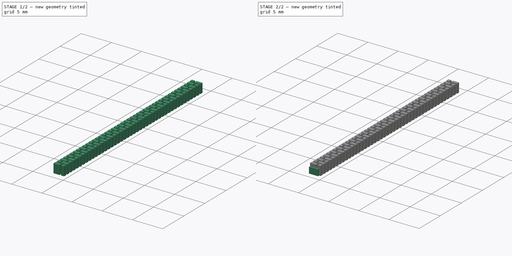
[diagram: build sequence overview — one tinted view per stage of 2, left to right]
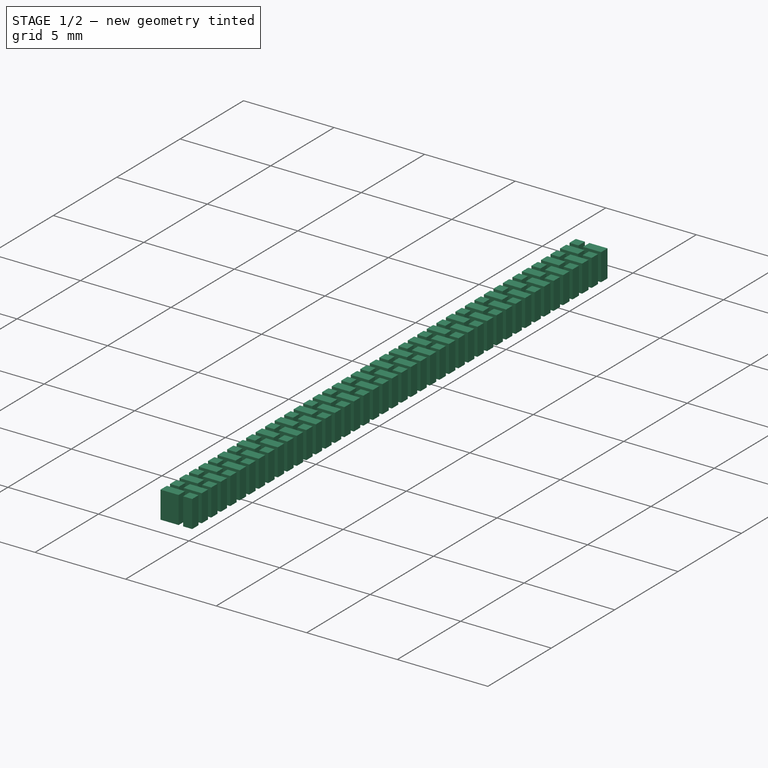
[diagram: stage 1 of 2 — iso view after this stage's code; geometry added in this stage tinted green]
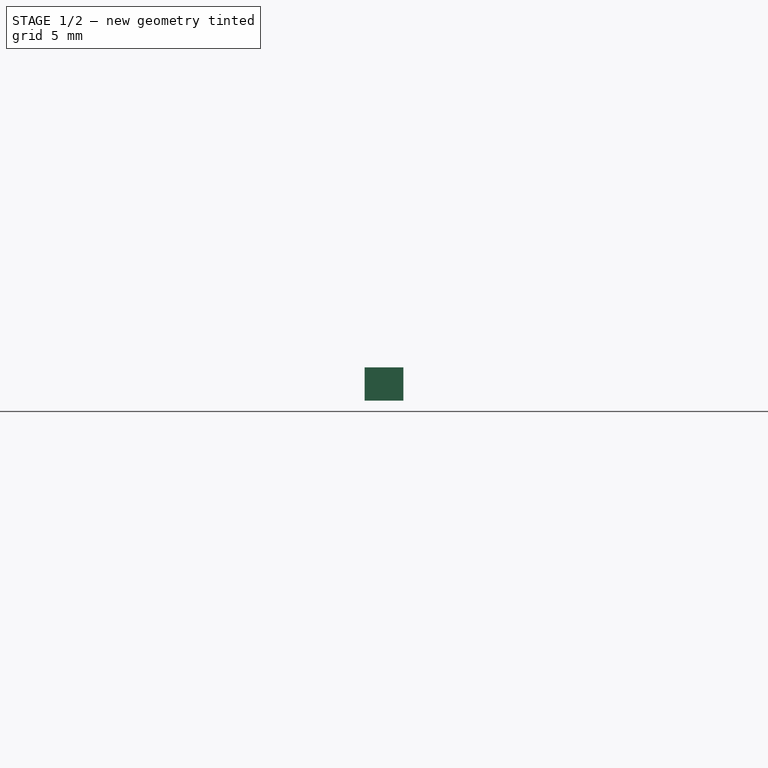
[diagram: stage 1 of 2 — front view after this stage's code; geometry added in this stage tinted green]
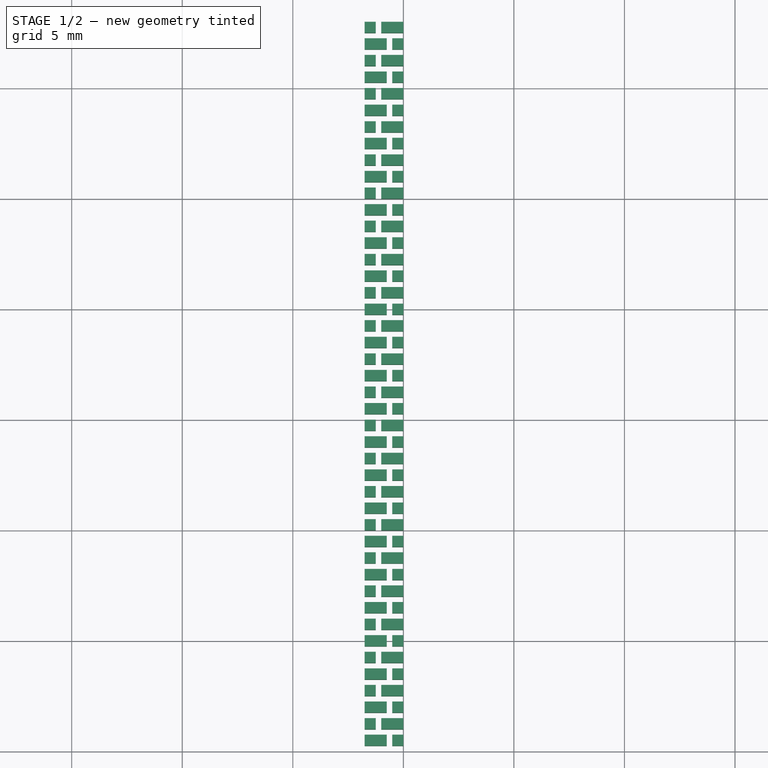
[diagram: stage 1 of 2 — top view after this stage's code; geometry added in this stage tinted green]
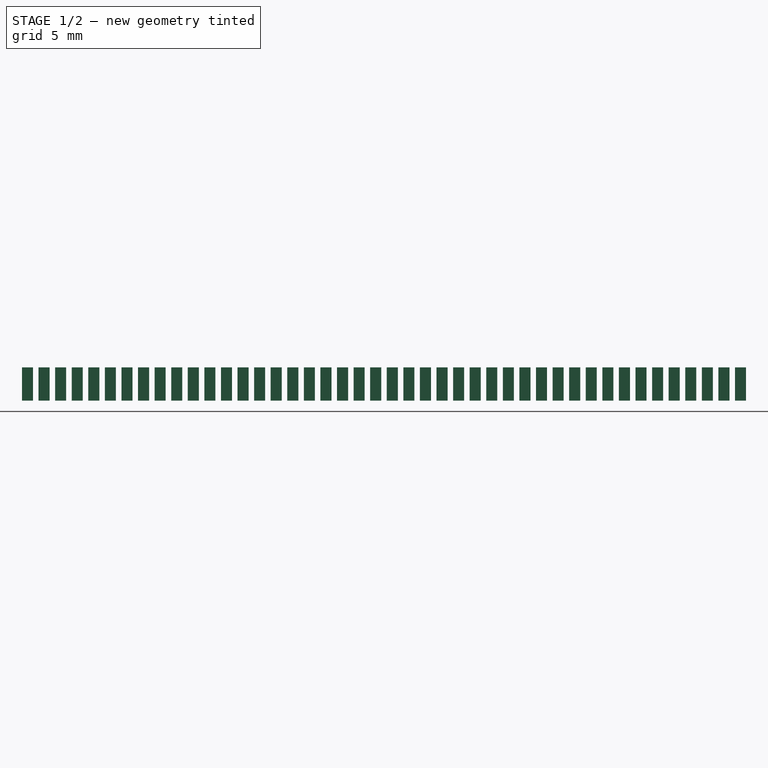
[diagram: stage 1 of 2 — right view after this stage's code; geometry added in this stage tinted green]
FCSTD DOCUMENT  (FreeCAD 0.16R6015 (Git))
Label: parement-brique-coin
License: All rights reserved
LicenseURL: http://fr.wikipedia.org/wiki/<copyright redacted>
objects: Sketcher::SketchObject×2, PartDesign::Pad×2, Part::FeaturePython×1
note: 7 computed .brp shape members not serialized (recipe doc carries the construction recipe); baked Part::Feature solids carry a one-line shape summary decoded from their .brp

FEATURE [Sketcher::SketchObject] Sketch001
  Placement = pos=(0,0,1) rot=(0,0,1;0rad)
  sketch-geometry (16):
    g0: LineSegment StartX=-0.5 StartY=0.75 StartZ=0 EndX=0 EndY=0.75 EndZ=0
    g1: LineSegment StartX=0 StartY=0.75 StartZ=0 EndX=0 EndY=0.25 EndZ=0
    g2: LineSegment StartX=0 StartY=0.25 StartZ=0 EndX=-0.5 EndY=0.25 EndZ=0
    g3: LineSegment StartX=-0.5 StartY=0.25 StartZ=0 EndX=-0.5 EndY=0.75 EndZ=0
    g4: LineSegment StartX=-1.75 StartY=0.75 StartZ=0 EndX=-0.75 EndY=0.75 EndZ=0
    g5: LineSegment StartX=-0.75 StartY=0.75 StartZ=0 EndX=-0.75 EndY=0.25 EndZ=0
    g6: LineSegment StartX=-0.75 StartY=0.25 StartZ=0 EndX=-1.75 EndY=0.25 EndZ=0
    g7: LineSegment StartX=-1.75 StartY=0.25 StartZ=0 EndX=-1.75 EndY=0.75 EndZ=0
    g8: LineSegment StartX=-1 StartY=1.5 StartZ=0 EndX=0 EndY=1.5 EndZ=0
    g9: LineSegment StartX=0 StartY=1.5 StartZ=0 EndX=0 EndY=1 EndZ=0
    g10: LineSegment StartX=0 StartY=1 StartZ=0 EndX=-1 EndY=1 EndZ=0
    g11: LineSegment StartX=-1 StartY=1 StartZ=0 EndX=-1 EndY=1.5 EndZ=0
    g12: LineSegment StartX=-1.75 StartY=1.5 StartZ=0 EndX=-1.25 EndY=1.5 EndZ=0
    g13: LineSegment StartX=-1.25 StartY=1.5 StartZ=0 EndX=-1.25 EndY=1 EndZ=0
    g14: LineSegment StartX=-1.25 StartY=1 StartZ=0 EndX=-1.75 EndY=1 EndZ=0
    g15: LineSegment StartX=-1.75 StartY=1 StartZ=0 EndX=-1.75 EndY=1.5 EndZ=0
  constraints (48):
    c: Coincident(g0,g1)
    c: Coincident(g1,g2)
    c: Coincident(g2,g3)
    c: Coincident(g3,g0)
    c: Horizontal(g0)
    c: Horizontal(g2)
    c: Vertical(g1)
    c: Vertical(g3)
    c: Coincident(g4,g5)
    c: Coincident(g5,g6)
    c: Coincident(g6,g7)
    c: Coincident(g7,g4)
    c: Horizontal(g4)
    c: Horizontal(g6)
    c: Vertical(g5)
    c: Vertical(g7)
    c: Coincident(g8,g9)
    c: Coincident(g9,g10)
    c: Coincident(g10,g11)
    c: Coincident(g11,g8)
    c: Horizontal(g8)
    c: Horizontal(g10)
    c: Vertical(g9)
    c: Vertical(g11)
    c: Coincident(g12,g13)
    c: Coincident(g13,g14)
    c: Coincident(g14,g15)
    c: Coincident(g15,g12)
    c: Horizontal(g12)
    c: Horizontal(g14)
    c: Vertical(g13)
    c: Vertical(g15)
    c: DistanceY(g1,g0) = 0.5
    c: DistanceX(g2,g1) = 0.5
    c: DistanceX(g6,g5) = 1
    c: DistanceX(g5,g2) = 0.25
    c: DistanceY(g5,g2) = 0
    c: DistanceX(g-1,g1) = 0
    c: Equal(g2,g14)
    c: Equal(g7,g3)
    c: Equal(g3,g11)
    c: Equal(g11,g15)
    c: DistanceY(g13,g10) = 0
    c: DistanceY(g9,g0) = -0.25
    c: DistanceX(g-1,g9) = 0
    c: DistanceX(g12,g8) = 0.25
    c: Equal(g4,g8)
    c: DistanceY(g-1,g1) = 0.25
FEATURE [PartDesign::Pad] Pad001
  Length = 1.5
  Length2 = 100
  Placement = pos=(0,0,1) rot=(0,0,1;0rad)
  Sketch = -> Sketch001
  Type = 0
FEATURE [Part::FeaturePython] Array001  # Draft array (typed FeaturePython)
  Angle = 360
  ArrayType = 0
  Axis = (0,0,1)
  Base = -> Pad001
  Center = (0,0,0)
  Fuse = false
  IntervalAxis = (0,0,0)
  IntervalX = (1,0,0)
  IntervalY = (0,1.5,0)
  IntervalZ = (0,0,0)
  NumberPolar = 1
  NumberX = 1
  NumberY = 22
  NumberZ = 1
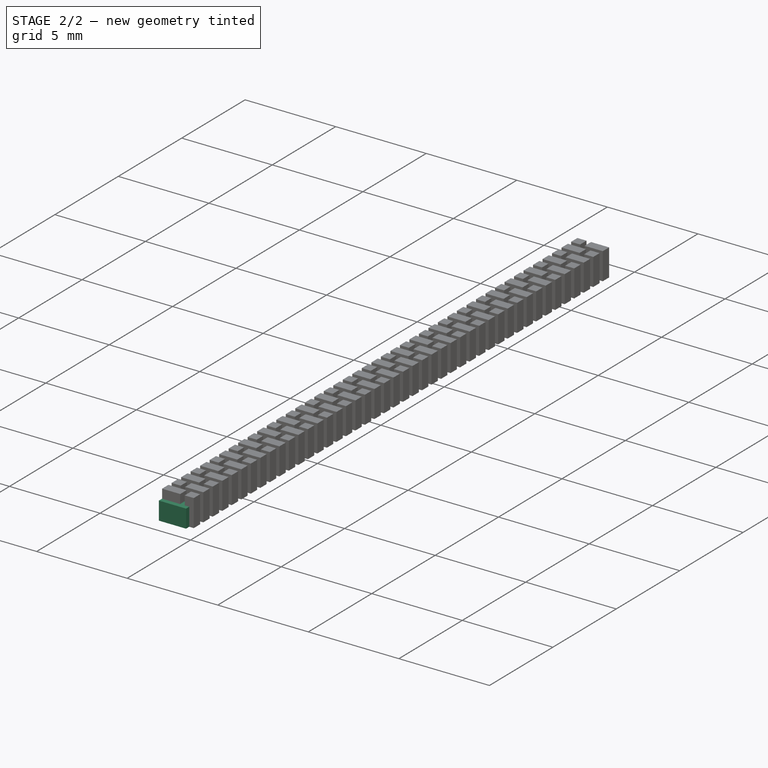
[diagram: stage 2 of 2 — iso view after this stage's code; geometry added in this stage tinted green]
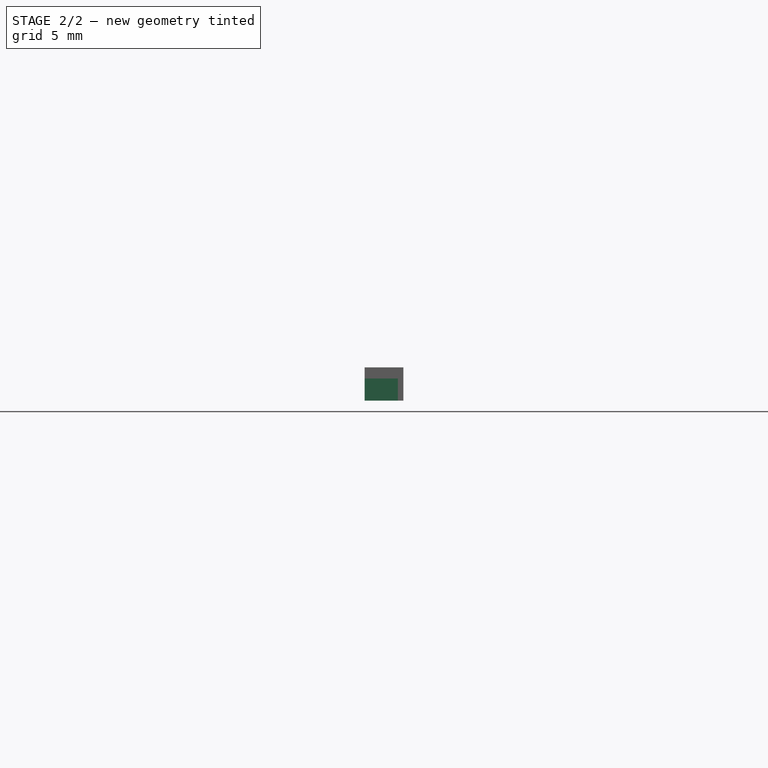
[diagram: stage 2 of 2 — front view after this stage's code; geometry added in this stage tinted green]
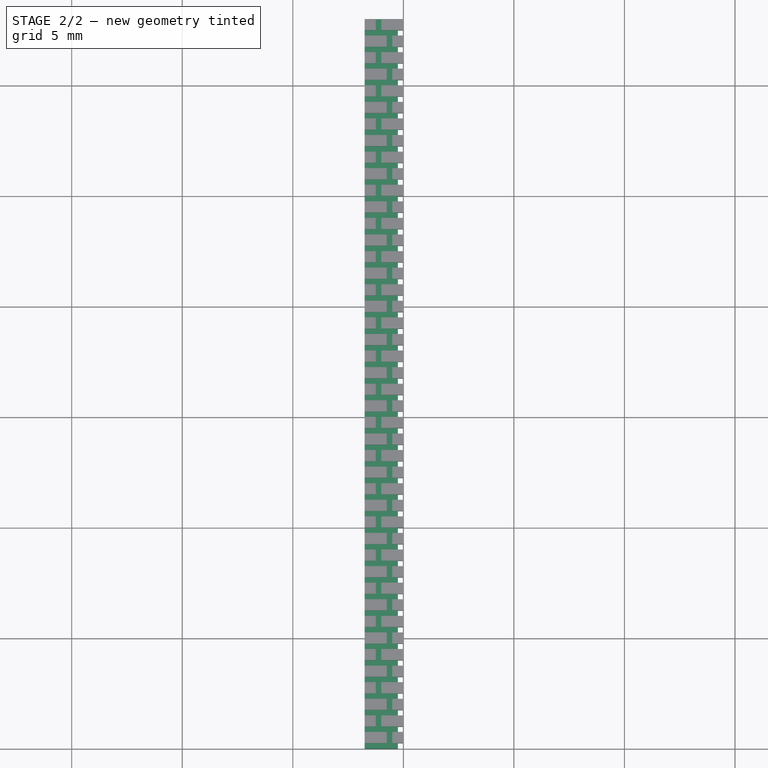
[diagram: stage 2 of 2 — top view after this stage's code; geometry added in this stage tinted green]
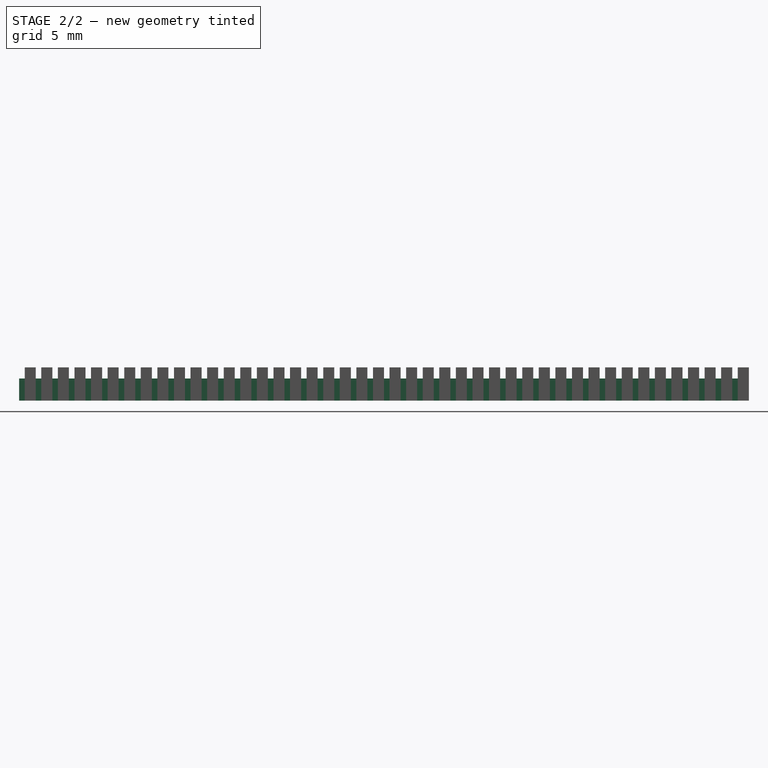
[diagram: stage 2 of 2 — right view after this stage's code; geometry added in this stage tinted green]
FEATURE [Sketcher::SketchObject] Sketch
  Placement = pos=(0,0,1) rot=(1,0,0;3.14159rad)
  Support = -> Array001 [Face11]
  sketch-geometry (4):
    g0: LineSegment StartX=-0.25 StartY=0 StartZ=0 EndX=-1.75 EndY=0 EndZ=0
    g1: LineSegment StartX=-1.75 StartY=0 StartZ=0 EndX=-1.75 EndY=-33 EndZ=0
    g2: LineSegment StartX=-1.75 StartY=-33 StartZ=0 EndX=-0.25 EndY=-33 EndZ=0
    g3: LineSegment StartX=-0.25 StartY=-33 StartZ=0 EndX=-0.25 EndY=0 EndZ=0
  constraints (12):
    c: Coincident(g0,g1)
    c: Coincident(g1,g2)
    c: Coincident(g2,g3)
    c: Coincident(g3,g0)
    c: Horizontal(g0)
    c: Horizontal(g2)
    c: Vertical(g1)
    c: Vertical(g3)
    c: PointOnObject(g0,g-1)
    c: DistanceX(g-1,g0) = -0.25
    c: DistanceX(g0,g0) = 1.5
    c: DistanceY(g2,g0) = 33
FEATURE [PartDesign::Pad] Pad
  Length = 1
  Length2 = 100
  Reversed = true
  Sketch = -> Sketch
  Type = 0
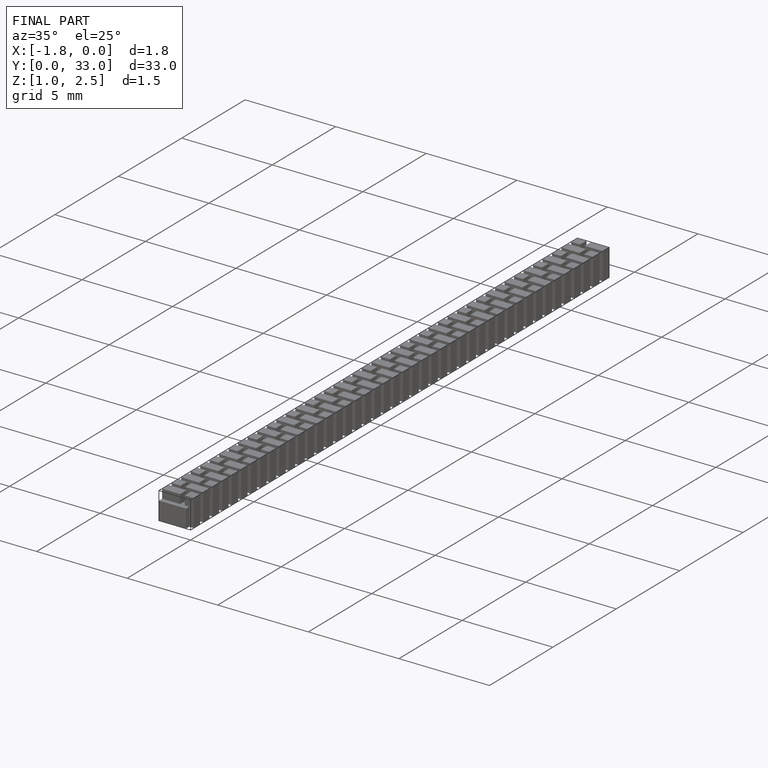
[diagram: finished part — iso view with bounding-box wireframe]
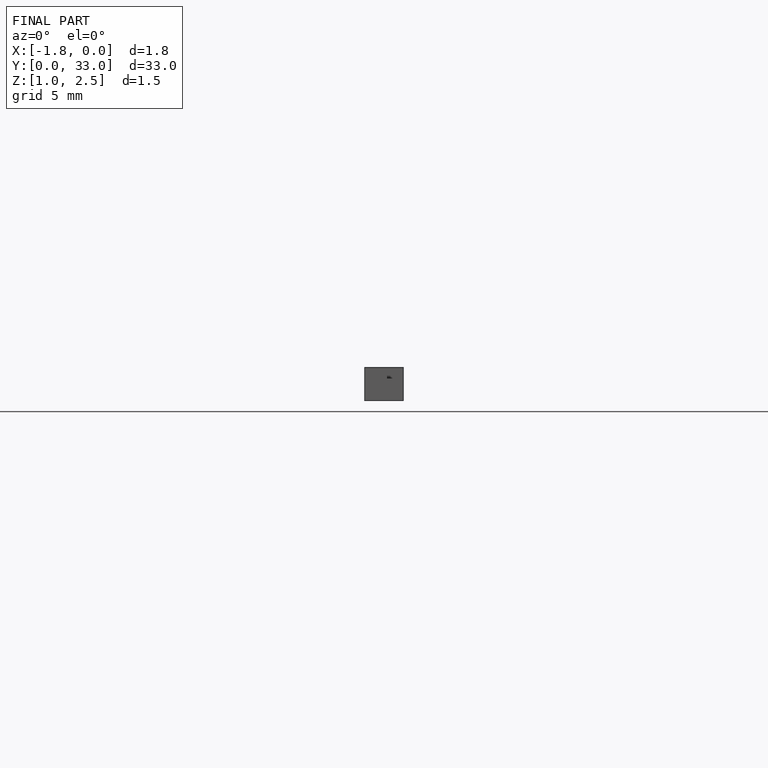
[diagram: finished part — front view with bounding-box wireframe]
